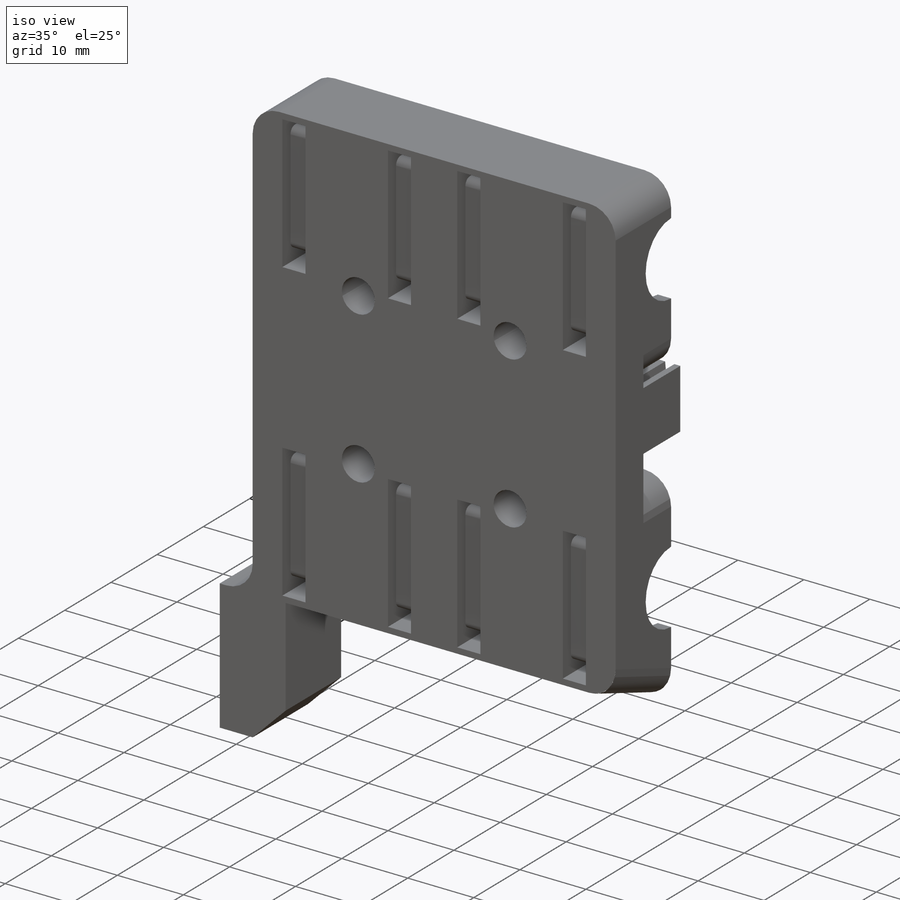
[diagram: iso view]
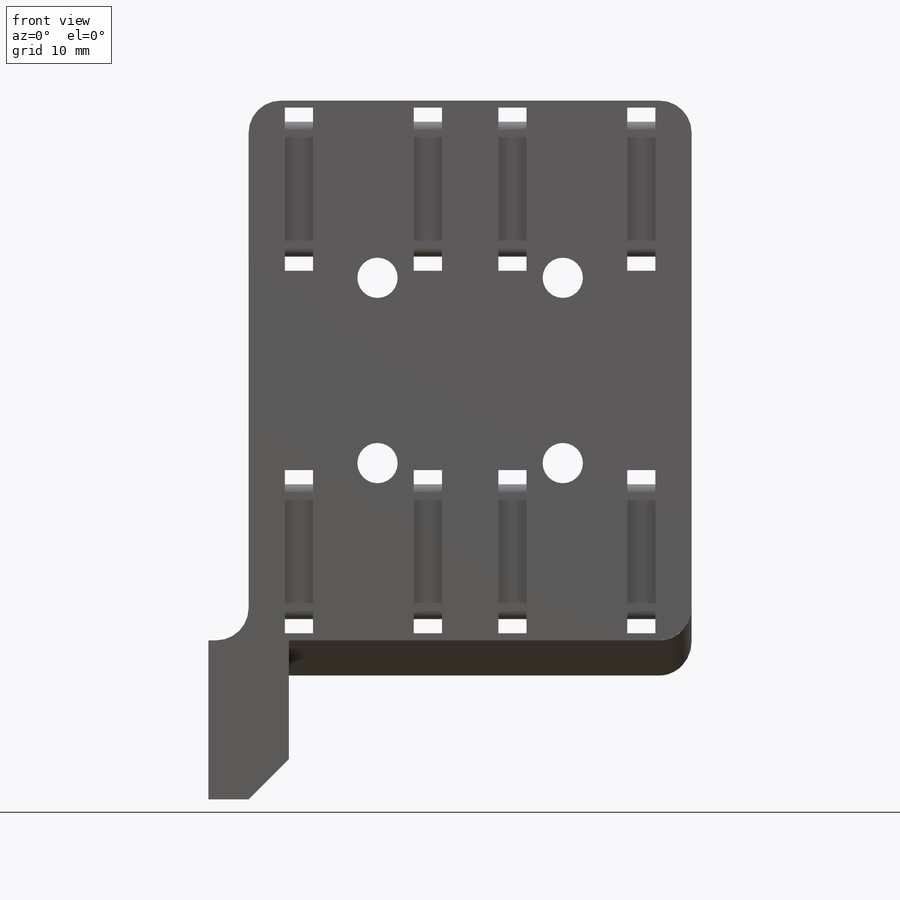
[diagram: front view]
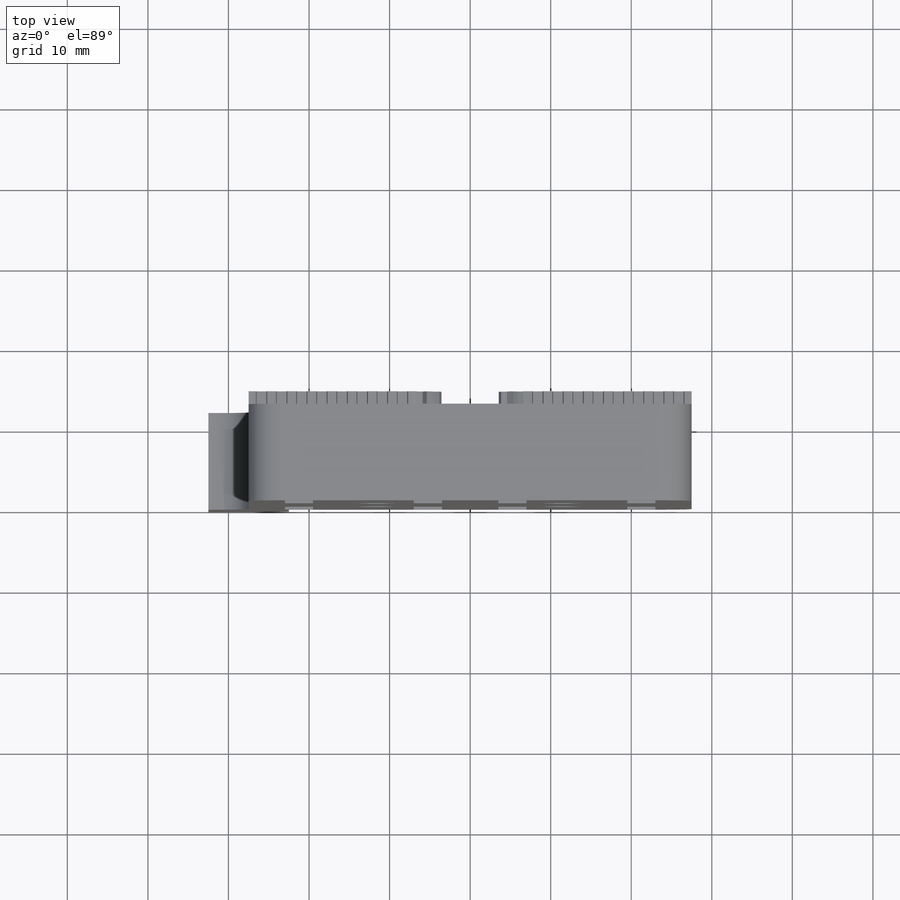
[diagram: top view]
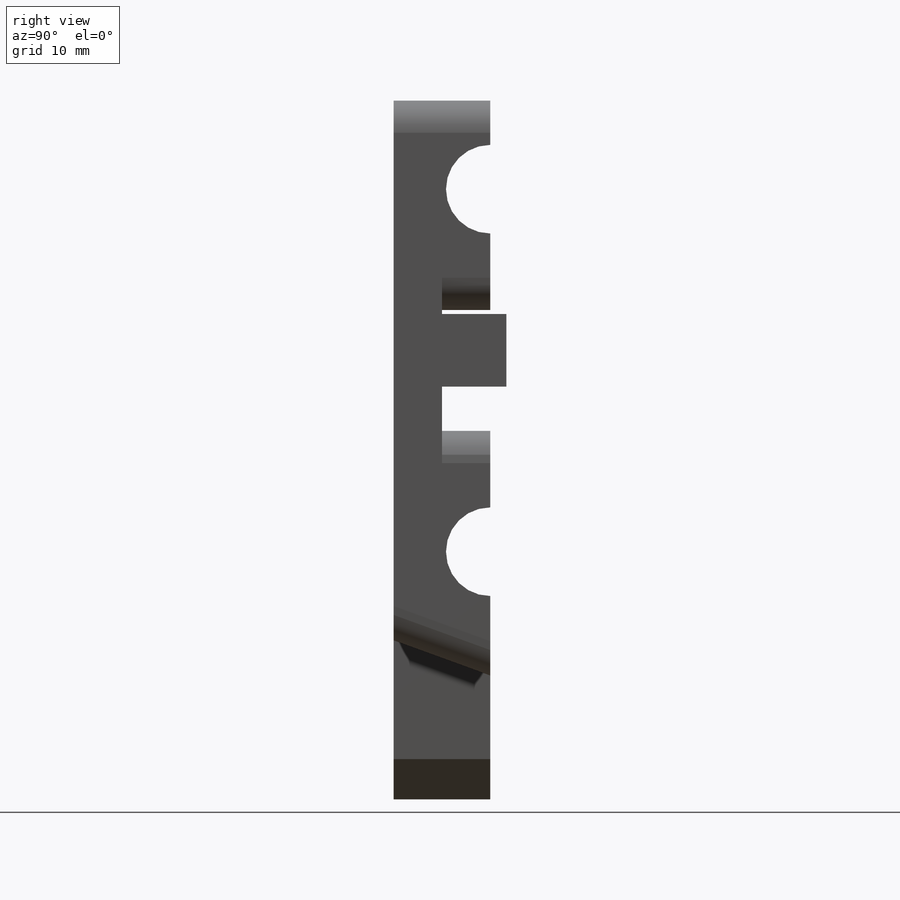
[diagram: right view]
SOLIDWORKS PART (.sldprt)
format: sldprt  version: not decoded by parser v0  size: 642,048 bytes
history: native  units: mm
features: sketch x13, cut_extrude x7, extrude x5, plane x3, fillet x3, mirror x3, material x1, chamfer x1 (+10 scaffold rows collapsed)
feature tree (46):
  scaffold x10  (default folders/planes/origin — collapsed)
  material  "Matériau <non spécifié>"
  plane  "Plan de face"
  plane  "Plan de dessus"
  plane  "Plan de droite"
  sketch  "Esquisse1"  dims[D1=55.0mm D2=67.0mm]
  extrude  "Boss.-Extru.1"  Depth=6mm
  sketch  "Esquisse2"  dims[D1=26.0mm]
  extrude  "Boss.-Extru.2"  Depth=6mm
  sketch  "Esquisse3"  dims[D1=15.0mm D2=45.0mm]
  cut_extrude  "Enlèv. mat.-Extru.1"  Depth=24.5mm
  sketch  "Esquisse4"  dims[D1=16.0mm D2=18.5mm D3=3.5mm D4=1.75mm]
  cut_extrude  "Enlèv. mat.-Extru.3"  [1 undecoded]
  sketch  "Esquisse6"
  cut_extrude  "Enlèv. mat.-Extru.5"  Depth=1.75mm
  fillet  "Congé1"  Radius=1mm
  mirror  "Symétrie4"
  sketch  "Esquisse5"  dims[D1=11.0mm D2=45.0mm]
  cut_extrude  "Enlèv. mat.-Extru.4"  [1 undecoded]
  mirror  "Symétrie5"
  sketch  "Esquisse7"  dims[D1=24.0mm D2=9.0mm D3=5.5mm]
  extrude  "Boss.-Extru.3"  Depth=8mm
  fillet  "Congé2"  Radius=4.5mm
  sketch  "Esquisse8"  dims[D1=1.0mm D2=0.1mm D3=1.0mm D4=1.2mm D5=0.1mm]
  cut_extrude  "Enlèv. mat.-Extru.6"  Depth=8mm
  sketch  "Esquisse9"  dims[D1=21.0 D3=2.5mm D2=1.0 D4=1.0mm]
  mirror  "Symétrie6"
  sketch  "Esquisse10"  dims[D3=5.0mm D1=23.0mm D2=23.0mm]
  cut_extrude  "Enlèv. mat.-Extru.7"  [1 undecoded]
  sketch  "Esquisse11"  dims[D1=10.0mm]
  extrude  "Boss.-Extru.4"  Depth=19.75mm
  sketch  "Esquisse12"  dims[D3=2.0mm D1=9.7mm D2=4.9mm D4=3.0mm]
  cut_extrude  "Enlèv. mat.-Extru.8"  Depth=4mm
  sketch  "Esquisse13"  dims[c1.D1=~6.880011mm c2.D1=~60.172875deg c3.D1=~5.153128mm c4.D1=70.0deg]
  extrude  "Boss.-Extru.5"  Depth=50mm
  fillet  "Congé3"  Radius=4mm
  chamfer  "Chanfrein1"  Distance=5mm Angle=45deg
decode coverage: 25 of 32 modeling features carry decoded parameters
note: ~ marks probable driven/reference dimensions
note: 3 parameter values undecoded
summary: no parameter record found for 3 features
note: suppression state not decoded; provenance and decode notes live in map.json
